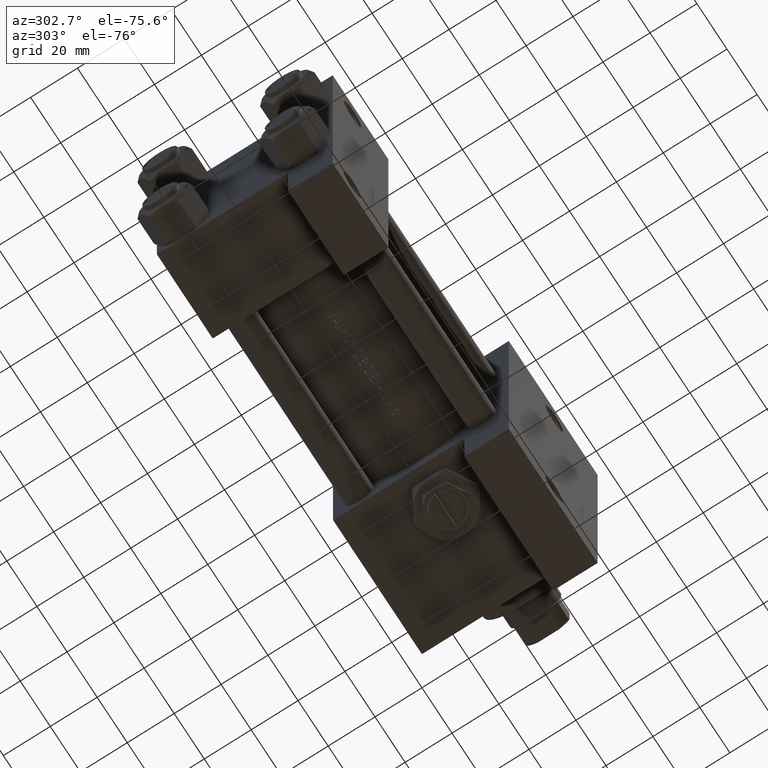
[diagram: clean part render]
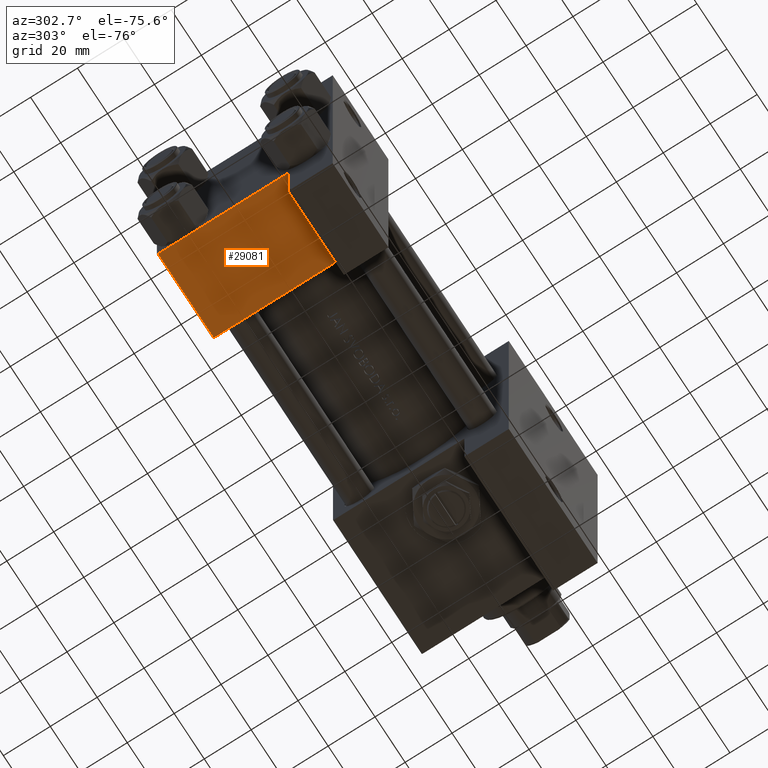
[diagram: same view with one face highlighted and labeled with its STEP entity id]
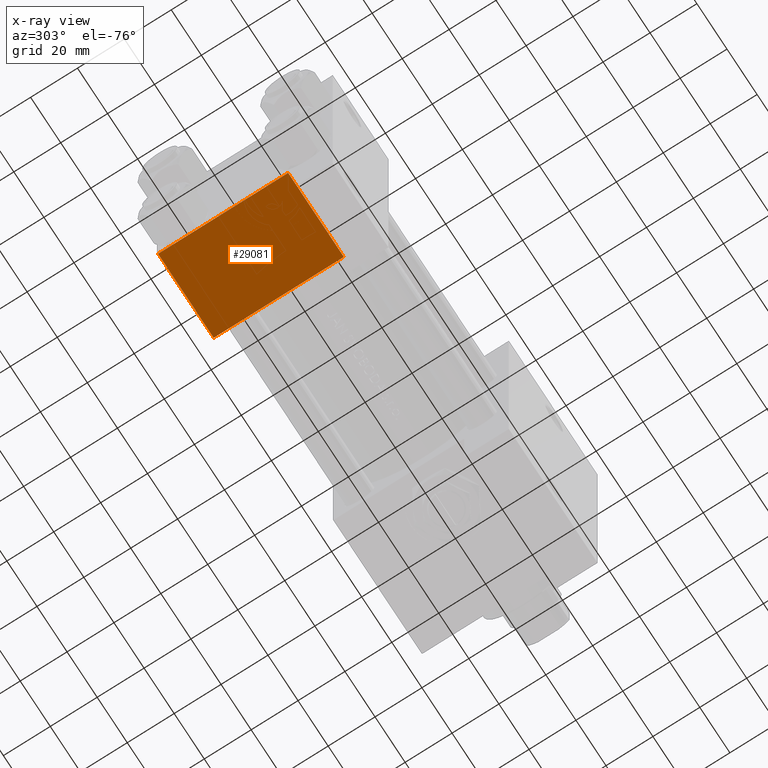
[diagram: x-ray of the same camera — body ghosted, the highlighted face saturated]
A machine part, auxiliary view. The second image highlights one B-rep face of the part: STEP entity #29081.
The next image is the same camera in x-ray: the body ghosted, the highlighted face saturated — about 0% of this face is hidden behind the body in this view.
In plain terms, the highlighted planar face has unit normal (0, 0, -1).
Its self-contained STEP definition (entity closure, byte-faithful):
#1068 = CARTESIAN_POINT ( 'NONE',  ( 0.000000000000000000, 37.49999999999999289, 37.50000000000000000 ) ) ;
#2173 = DIRECTION ( 'NONE',  ( -0.000000000000000000, 1.000000000000000000, 0.000000000000000000 ) ) ;
#3804 = ORIENTED_EDGE ( 'NONE', *, *, #21480, .F. ) ;
#5040 = DIRECTION ( 'NONE',  ( 0.000000000000000000, 0.000000000000000000, -1.000000000000000000 ) ) ;
#5915 = PLANE ( 'NONE',  #21411 ) ;
#5924 = LINE ( 'NONE', #40305, #10151 ) ;
#7441 = EDGE_CURVE ( 'NONE', #11044, #37066, #27951, .T. ) ;
#10151 = VECTOR ( 'NONE', #37316, 1000.000000000000000 ) ;
#10723 = DIRECTION ( 'NONE',  ( 0.000000000000000000, 0.000000000000000000, -1.000000000000000000 ) ) ;
#11044 = VERTEX_POINT ( 'NONE', #12320 ) ;
#11588 = VERTEX_POINT ( 'NONE', #30678 ) ;
#12320 = CARTESIAN_POINT ( 'NONE',  ( 0.000000000000000000, 37.49999999999999289, 37.00000000000000000 ) ) ;
#13029 = CARTESIAN_POINT ( 'NONE',  ( 37.00000000000000000, 37.49999999999999289, 37.00000000000000000 ) ) ;
#17770 = VECTOR ( 'NONE', #39406, 1000.000000000000000 ) ;
#18120 = FACE_OUTER_BOUND ( 'NONE', #37130, .T. ) ;
#20784 = CARTESIAN_POINT ( 'NONE',  ( 0.000000000000000000, 37.49999999999999289, -18.49999999999999645 ) ) ;
#21411 = AXIS2_PLACEMENT_3D ( 'NONE', #33337, #2173, #32595 ) ;
#21480 = EDGE_CURVE ( 'NONE', #40877, #11588, #5924, .T. ) ;
#22667 = ORIENTED_EDGE ( 'NONE', *, *, #37505, .T. ) ;
#25667 = CARTESIAN_POINT ( 'NONE',  ( 37.00000000000000000, 37.49999999999999289, 37.50000000000000000 ) ) ;
#27951 = LINE ( 'NONE', #43152, #17770 ) ;
#29081 = ADVANCED_FACE ( 'NONE', ( #18120 ), #5915, .T. ) ;
#30678 = CARTESIAN_POINT ( 'NONE',  ( 37.00000000000000711, 37.50000000000000711, -18.50000000000000355 ) ) ;
#30772 = VECTOR ( 'NONE', #5040, 1000.000000000000000 ) ;
#32378 = EDGE_CURVE ( 'NONE', #11044, #40877, #39170, .T. ) ;
#32595 = DIRECTION ( 'NONE',  ( 0.000000000000000000, -0.000000000000000000, 1.000000000000000000 ) ) ;
#33337 = CARTESIAN_POINT ( 'NONE',  ( 37.00000000000000000, 37.49999999999999289, 37.50000000000000000 ) ) ;
#37066 = VERTEX_POINT ( 'NONE', #13029 ) ;
#37130 = EDGE_LOOP ( 'NONE', ( #3804, #42997, #37186, #22667 ) ) ;
#37186 = ORIENTED_EDGE ( 'NONE', *, *, #7441, .T. ) ;
#37316 = DIRECTION ( 'NONE',  ( 1.000000000000000000, -3.750753461571474945E-16, 0.000000000000000000 ) ) ;
#37505 = EDGE_CURVE ( 'NONE', #37066, #11588, #44858, .T. ) ;
#39170 = LINE ( 'NONE', #1068, #30772 ) ;
#39406 = DIRECTION ( 'NONE',  ( 1.000000000000000000, 0.000000000000000000, 0.000000000000000000 ) ) ;
#40305 = CARTESIAN_POINT ( 'NONE',  ( 8.470280871287256020E-15, 37.50000000000002842, -18.49999999999999645 ) ) ;
#40877 = VERTEX_POINT ( 'NONE', #20784 ) ;
#42997 = ORIENTED_EDGE ( 'NONE', *, *, #32378, .F. ) ;
#43152 = CARTESIAN_POINT ( 'NONE',  ( 37.00000000000000000, 37.49999999999999289, 37.00000000000000000 ) ) ;
#44858 = LINE ( 'NONE', #25667, #47645 ) ;
#47645 = VECTOR ( 'NONE', #10723, 1000.000000000000000 ) ;